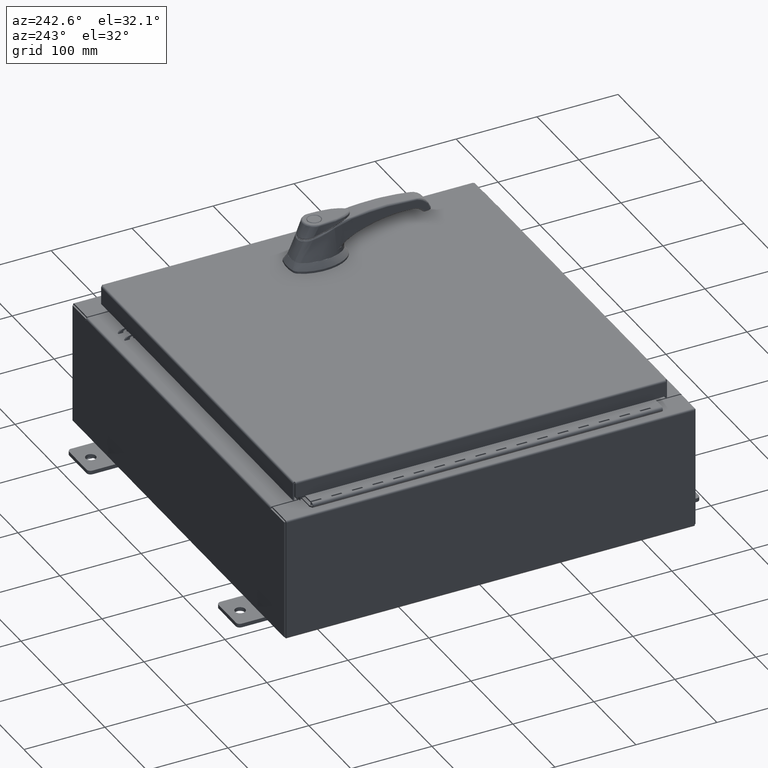
[diagram: clean part render]
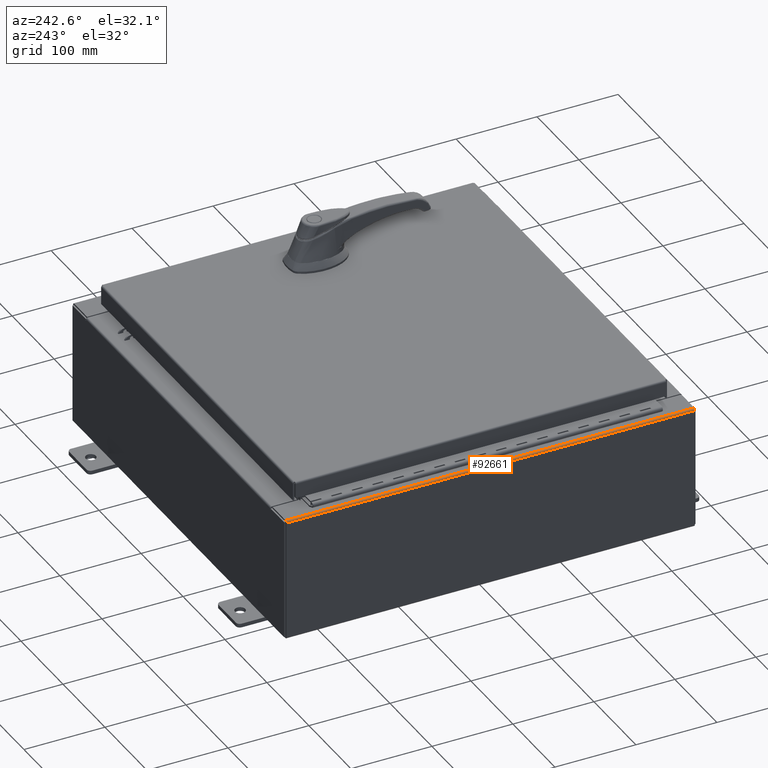
[diagram: same view with one face highlighted and labeled with its STEP entity id]
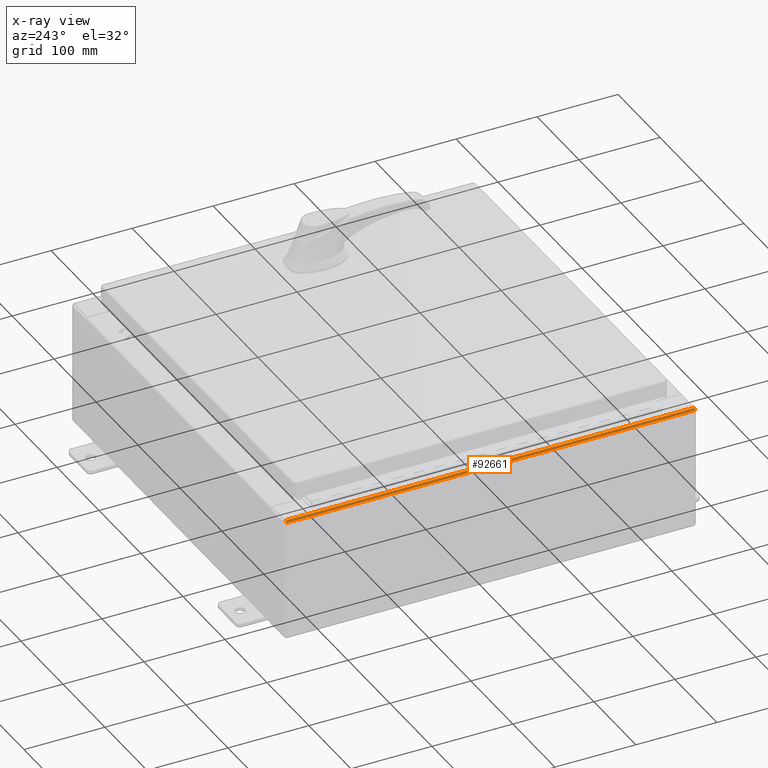
[diagram: x-ray of the same camera — body ghosted, the highlighted face saturated]
A machine part, auxiliary view. The second image highlights one B-rep face of the part: STEP entity #92661.
The next image is the same camera in x-ray: the body ghosted, the highlighted face saturated — about 0% of this face is hidden behind the body in this view.
In plain terms, the highlighted cylindrical surface (edge-blend (fillet) strip) has radius 2.2276 mm, axis along (-0, -1, -0).
Its self-contained STEP definition (entity closure, byte-faithful):
#1949 = DIRECTION ( 'NONE',  ( -0.0000000000000000000, 1.000000000000000000, -5.504816970095139000E-017 ) ) ;
#7688 = LINE ( 'NONE', #10388, #72298 ) ;
#8728 = EDGE_CURVE ( 'NONE', #97385, #62720, #43834, .T. ) ;
#10388 = CARTESIAN_POINT ( 'NONE',  ( -10.00000000000002000, -9.925299999999992900, 5.837599999999999200 ) ) ;
#15039 = EDGE_CURVE ( 'NONE', #62720, #20378, #7688, .T. ) ;
#16297 = DIRECTION ( 'NONE',  ( -0.0000000000000000000, -1.000000000000000000, -0.0000000000000000000 ) ) ;
#16875 = CARTESIAN_POINT ( 'NONE',  ( -9.912300000000019700, -9.925299999999992900, 5.837599999999999200 ) ) ;
#20378 = VERTEX_POINT ( 'NONE', #73854 ) ;
#24450 = CARTESIAN_POINT ( 'NONE',  ( -9.912300000000019700, 9.925300000000001800, 5.837599999999999200 ) ) ;
#26075 = FACE_OUTER_BOUND ( 'NONE', #88008, .T. ) ;
#27074 = ORIENTED_EDGE ( 'NONE', *, *, #73798, .T. ) ;
#30503 = CARTESIAN_POINT ( 'NONE',  ( -9.912300000000019700, -9.925299999999992900, 5.925299999999999100 ) ) ;
#32945 = DIRECTION ( 'NONE',  ( 0.0000000000000000000, 0.0000000000000000000, -1.000000000000000000 ) ) ;
#35786 = DIRECTION ( 'NONE',  ( 0.0000000000000000000, 1.000000000000000000, 0.0000000000000000000 ) ) ;
#36461 = DIRECTION ( 'NONE',  ( 0.0000000000000000000, 0.0000000000000000000, 1.000000000000000000 ) ) ;
#43834 = CIRCLE ( 'NONE', #96868, 0.08770000000000026400 ) ;
#45634 = AXIS2_PLACEMENT_3D ( 'NONE', #16875, #75842, #36461 ) ;
#46599 = AXIS2_PLACEMENT_3D ( 'NONE', #24450, #83463, #32945 ) ;
#48211 = VERTEX_POINT ( 'NONE', #51626 ) ;
#51626 = CARTESIAN_POINT ( 'NONE',  ( -9.912300000000019700, 9.925300000000001800, 5.925299999999999100 ) ) ;
#59122 = VECTOR ( 'NONE', #1949, 39.37007874015748100 ) ;
#62720 = VERTEX_POINT ( 'NONE', #64438 ) ;
#63996 = CIRCLE ( 'NONE', #46599, 0.08770000000000026400 ) ;
#64438 = CARTESIAN_POINT ( 'NONE',  ( -10.00000000000002000, -9.925299999999992900, 5.837599999999999200 ) ) ;
#66770 = CARTESIAN_POINT ( 'NONE',  ( -9.912300000000019700, -9.925299999999992900, 5.837599999999999200 ) ) ;
#67780 = ORIENTED_EDGE ( 'NONE', *, *, #15039, .F. ) ;
#72298 = VECTOR ( 'NONE', #35786, 39.37007874015748100 ) ;
#73798 = EDGE_CURVE ( 'NONE', #97385, #48211, #101313, .T. ) ;
#73854 = CARTESIAN_POINT ( 'NONE',  ( -10.00000000000002000, 9.925300000000001800, 5.837599999999999200 ) ) ;
#74475 = ORIENTED_EDGE ( 'NONE', *, *, #8728, .F. ) ;
#75288 = DIRECTION ( 'NONE',  ( 0.0000000000000000000, 0.0000000000000000000, -1.000000000000000000 ) ) ;
#75842 = DIRECTION ( 'NONE',  ( -0.0000000000000000000, -1.000000000000000000, -0.0000000000000000000 ) ) ;
#83301 = EDGE_CURVE ( 'NONE', #20378, #48211, #63996, .T. ) ;
#83463 = DIRECTION ( 'NONE',  ( 0.0000000000000000000, 1.000000000000000000, 0.0000000000000000000 ) ) ;
#85438 = CYLINDRICAL_SURFACE ( 'NONE', #45634, 0.08770000000000026400 ) ;
#86040 = CARTESIAN_POINT ( 'NONE',  ( -9.912300000000019700, 9.925300000000000000, 5.925299999999999100 ) ) ;
#88008 = EDGE_LOOP ( 'NONE', ( #67780, #74475, #27074, #96084 ) ) ;
#92661 = ADVANCED_FACE ( 'NONE', ( #26075 ), #85438, .T. ) ;
#96084 = ORIENTED_EDGE ( 'NONE', *, *, #83301, .F. ) ;
#96868 = AXIS2_PLACEMENT_3D ( 'NONE', #66770, #16297, #75288 ) ;
#97385 = VERTEX_POINT ( 'NONE', #30503 ) ;
#101313 = LINE ( 'NONE', #86040, #59122 ) ;